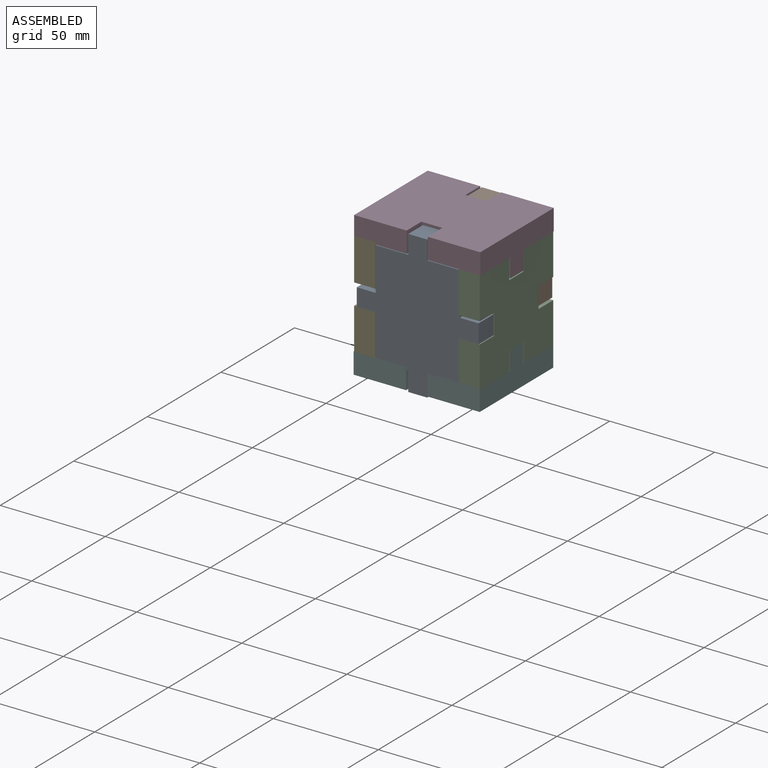
[diagram: assembled view]
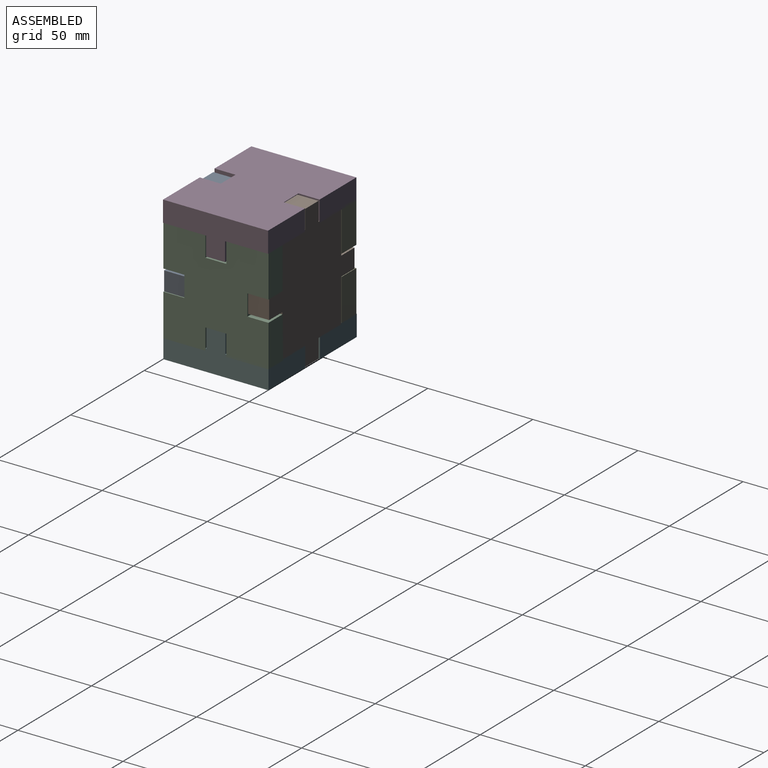
[diagram: assembled view, second angle]
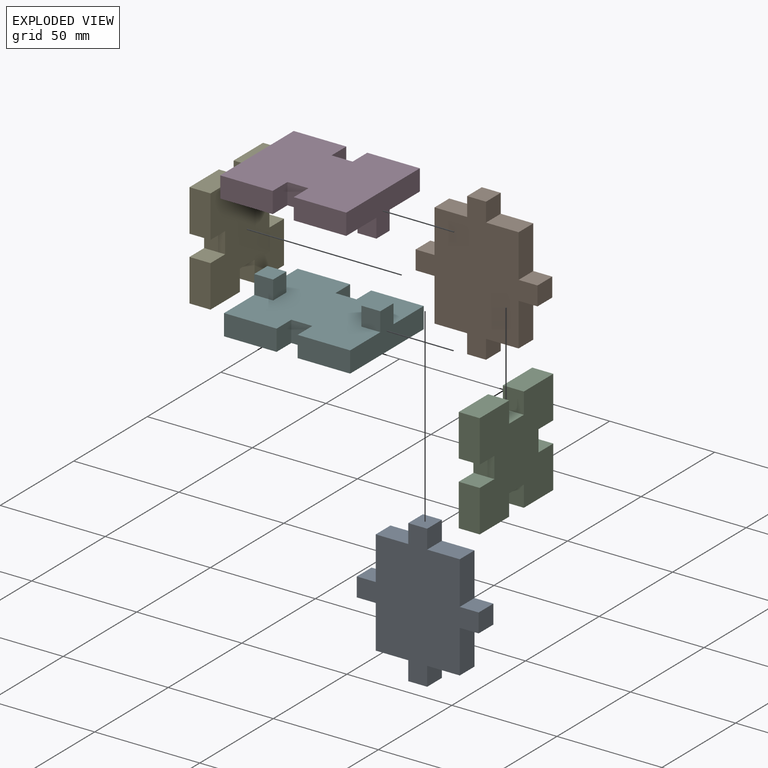
[diagram: exploded view]
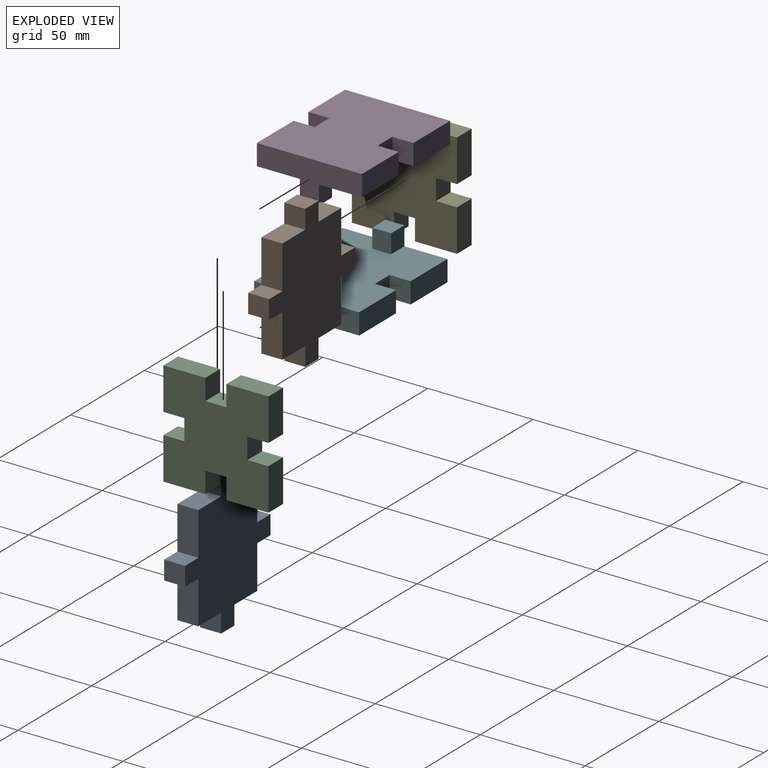
[diagram: exploded view, second angle]
ASSEMBLY  parts=6 mates=3
PART A: 22 faces, bbox 58x10x68 mm
  f0: plane 10x9mm, normal (0,0,-1), area 90mm2, adj f1,f19,f20,f21
  f1: plane 20.5x10mm, normal (-1,0,0), area 205mm2, adj f0,f2,f20,f21
  f2: plane 15.5x10mm, normal (0,0,-1), area 155mm2, adj f1,f3,f20,f21
  f3: plane 10x9mm, normal (-1,0,0), area 90mm2, adj f2,f4,f20,f21
  f4: plane 10x9mm, normal (0,0,-1), area 90mm2, adj f3,f5,f20,f21
  f5: plane 10x9mm, normal (1,0,0), area 90mm2, adj f4,f6,f20,f21
  f6: plane 15.5x10mm, normal (0,0,-1), area 155mm2, adj f5,f7,f20,f21
  f7: plane 20.5x10mm, normal (1,0,0), area 205mm2, adj f6,f8,f20,f21
  f8: plane 10x9mm, normal (0,0,-1), area 90mm2, adj f7,f9,f20,f21
  f9: plane 10x9mm, normal (1,0,0), area 90mm2, adj f8,f10,f20,f21
  f10: plane 10x9mm, normal (0,0,1), area 90mm2, adj f9,f11,f20,f21
  f11: plane 20.5x10mm, normal (1,0,0), area 205mm2, adj f10,f12,f20,f21
  f12: plane 15.5x10mm, normal (0,0,1), area 155mm2, adj f11,f13,f20,f21
  f13: plane 10x9mm, normal (1,0,0), area 90mm2, adj f12,f14,f20,f21
  f14: plane 10x9mm, normal (0,0,1), area 90mm2, adj f13,f15,f20,f21
  f15: plane 10x9mm, normal (-1,0,0), area 90mm2, adj f14,f16,f20,f21
  f16: plane 15.5x10mm, normal (0,0,1), area 155mm2, adj f15,f17,f20,f21
  f17: plane 20.5x10mm, normal (-1,0,0), area 205mm2, adj f16,f18,f20,f21
  f18: plane 10x9mm, normal (0,0,1), area 90mm2, adj f17,f19,f20,f21
  f19: plane 10x9mm, normal (-1,0,0), area 90mm2, adj f0,f18,f20,f21
  f20: plane 68x58mm, normal (0,-1,0), area 2324mm2, adj f0,f1,f2,f3,f4,f5,f6,f7
  f21: plane 68x58mm, normal (0,1,0), area 2324mm2, adj f0,f1,f2,f3,f4,f5,f6,f7
PART B: same geometry as A
PART C: 22 faces, bbox 10x50x50 mm
  f0: plane 10x10mm, normal (0,0,1), area 100mm2, adj f1,f19,f20,f21
  f1: plane 20x10mm, normal (0,-1,0), area 200mm2, adj f0,f2,f20,f21
  f2: plane 20x10mm, normal (0,0,-1), area 200mm2, adj f1,f3,f20,f21
  f3: plane 10x10mm, normal (0,1,0), area 100mm2, adj f2,f4,f20,f21
  f4: plane 10x10mm, normal (0,0,-1), area 100mm2, adj f3,f5,f20,f21
  f5: plane 10x10mm, normal (0,-1,0), area 100mm2, adj f4,f6,f20,f21
  f6: plane 20x10mm, normal (0,0,-1), area 200mm2, adj f5,f7,f20,f21
  f7: plane 20x10mm, normal (0,1,0), area 200mm2, adj f6,f8,f20,f21
  f8: plane 10x10mm, normal (0,0,1), area 100mm2, adj f7,f9,f20,f21
  f9: plane 10x10mm, normal (0,1,0), area 100mm2, adj f8,f10,f20,f21
  f10: plane 10x10mm, normal (0,0,-1), area 100mm2, adj f9,f11,f20,f21
  f11: plane 20x10mm, normal (0,1,0), area 200mm2, adj f10,f12,f20,f21
  f12: plane 20x10mm, normal (0,0,1), area 200mm2, adj f11,f13,f20,f21
  f13: plane 10x10mm, normal (0,-1,0), area 100mm2, adj f12,f14,f20,f21
  f14: plane 10x10mm, normal (0,0,1), area 100mm2, adj f13,f15,f20,f21
  f15: plane 10x10mm, normal (0,1,0), area 100mm2, adj f14,f16,f20,f21
  f16: plane 20x10mm, normal (0,0,1), area 200mm2, adj f15,f17,f20,f21
  f17: plane 20x10mm, normal (0,-1,0), area 200mm2, adj f16,f18,f20,f21
  f18: plane 10x10mm, normal (0,0,-1), area 100mm2, adj f17,f19,f20,f21
  f19: plane 10x10mm, normal (0,-1,0), area 100mm2, adj f0,f18,f20,f21
  f20: plane 50x50mm, normal (1,0,0), area 2100mm2, adj f0,f1,f2,f3,f4,f5,f6,f7
  f21: plane 50x50mm, normal (-1,0,0), area 2100mm2, adj f0,f1,f2,f3,f4,f5,f6,f7
PART D: 22 faces, bbox 60x50x19 mm
  f0: plane 60x50mm, normal (0,0,-1), area 2638mm2, adj f1,f2,f3,f4,f5,f6,f7,f8
  f1: plane 25x10mm, normal (0,-1,0), area 250mm2, adj f0,f2,f12,f13
  f2: plane 10x10mm, normal (1,0,0), area 100mm2, adj f0,f1,f3,f13
  f3: plane 10x10mm, normal (0,-1,0), area 100mm2, adj f0,f2,f4,f13
  f4: plane 10x10mm, normal (-1,0,0), area 100mm2, adj f0,f3,f5,f13
  f5: plane 25x10mm, normal (0,-1,0), area 250mm2, adj f0,f4,f6,f13
  f6: plane 50x19mm, normal (1,0,0), area 581mm2, adj f0,f5,f7,f13,f18,f20,f21
  f7: plane 25x10mm, normal (0,1,0), area 250mm2, adj f0,f6,f8,f13
  f8: plane 10x10mm, normal (-1,0,0), area 100mm2, adj f0,f7,f9,f13
  f9: plane 10x10mm, normal (0,1,0), area 100mm2, adj f0,f8,f10,f13
  f10: plane 10x10mm, normal (1,0,0), area 100mm2, adj f0,f9,f11,f13
  f11: plane 25x10mm, normal (0,1,0), area 250mm2, adj f0,f10,f12,f13
  f12: plane 50x19mm, normal (-1,0,0), area 581mm2, adj f0,f1,f11,f13,f15,f16,f17
  f13: plane 60x50mm, normal (0,0,1), area 2800mm2, adj f1,f2,f3,f4,f5,f6,f7,f8
  f14: plane 9x9mm, normal (1,0,0), area 81mm2, adj f0,f15,f16,f17
  f15: plane 9x9mm, normal (0,1,0), area 81mm2, adj f0,f12,f14,f17
  f16: plane 9x9mm, normal (0,-1,0), area 81mm2, adj f0,f12,f14,f17
  f17: plane 9x9mm, normal (0,0,-1), area 81mm2, adj f12,f14,f15,f16
  f18: plane 9x9mm, normal (0,1,0), area 81mm2, adj f0,f6,f19,f21
  f19: plane 9x9mm, normal (-1,0,0), area 81mm2, adj f0,f18,f20,f21
  f20: plane 9x9mm, normal (0,-1,0), area 81mm2, adj f0,f6,f19,f21
  f21: plane 9x9mm, normal (0,0,-1), area 81mm2, adj f6,f18,f19,f20
PART E: same geometry as C
PART F: same geometry as D
PLACE A t=(-3.56,65.7,-65.71)mm
PLACE B t=(-3.56,105.7,-64.71)mm
PLACE C t=(-0.75,105.7,-65.21)mm
PLACE D t=(-71.22,46.74,-15.46)mm
PLACE E t=(-50.5,105.7,-64.46)mm
PLACE F rot(axis=(0,-1,0),180deg) t=(29.97,46.74,-64.21)mm
MATE fastened B.f10 <-> C.f10  axis (0,0,1) through (4.25,100.7,-35.21)mm
MATE fastened B.f5 <-> F.f10  axis (1,0,0) through (-15.75,100.7,-69.21)mm
MATE fastened A.f8 <-> C.f0  axis (0,0,-1) through (4.25,60.7,-45.21)mm
